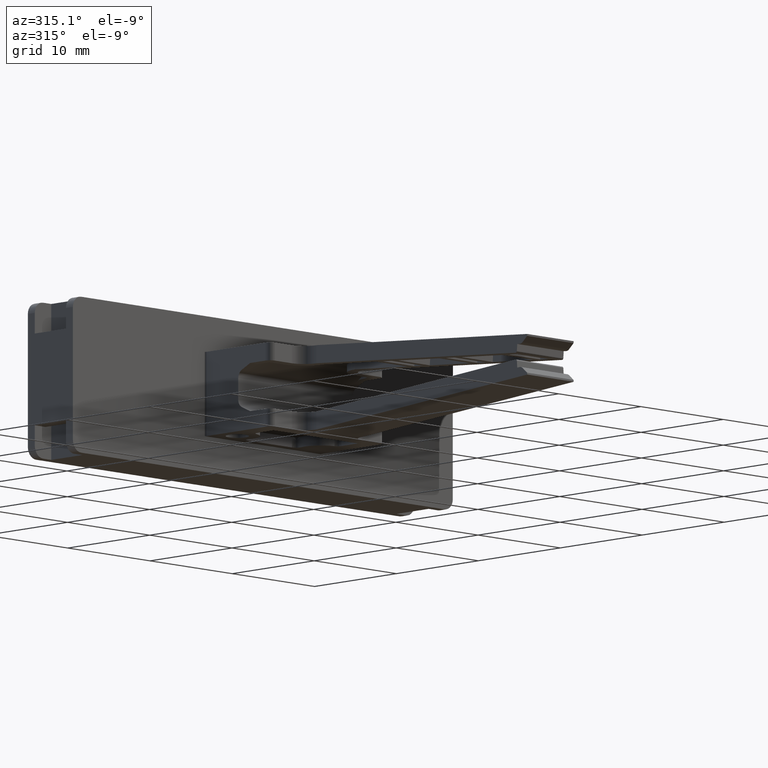
[diagram: clean part render]
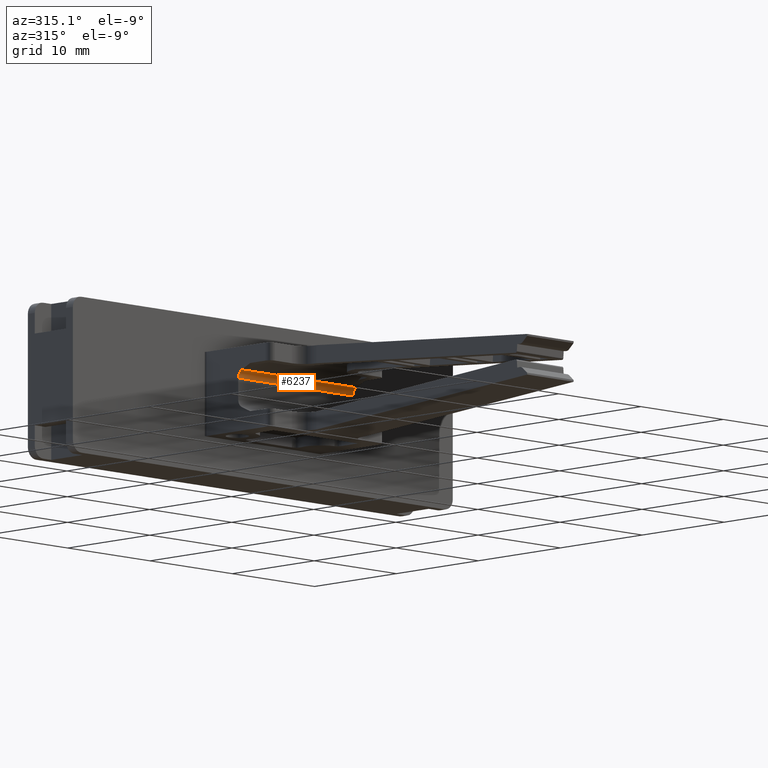
[diagram: same view with one face highlighted and labeled with its STEP entity id]
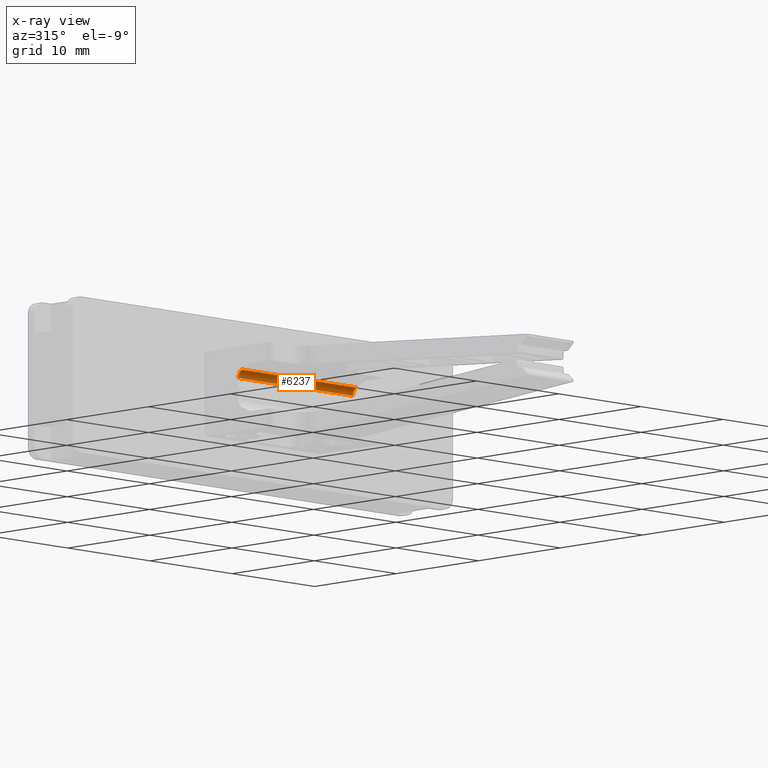
[diagram: x-ray of the same camera — body ghosted, the highlighted face saturated]
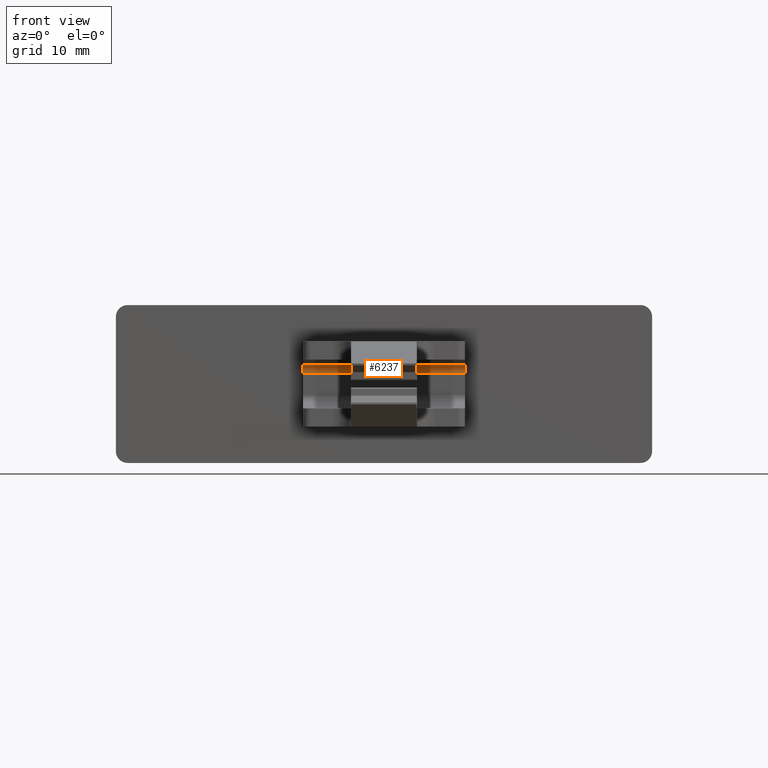
[diagram: same view with one face highlighted and labeled with its STEP entity id]
A machine part, auxiliary view. The second image highlights one B-rep face of the part: STEP entity #6237.
The next image is the same camera in x-ray: the body ghosted, the highlighted face saturated — about 0% of this face is hidden behind the body in this view.
A second angle (front view) of the same face is appended — the face is thin or edge-on in the first view.
In plain terms, the highlighted cylindrical surface (edge-blend (fillet) strip) has radius 0.75 mm, axis along (-1, 0, 0).
Its self-contained STEP definition (entity closure, byte-faithful):
#26 = CARTESIAN_POINT ( 'NONE',  ( -432.9670890845463300, 142.2340673050252100, 16.02338111327479500 ) ) ;
#29 = CARTESIAN_POINT ( 'NONE',  ( -446.9170890845463800, 142.2340673050252600, 16.02338111327479500 ) ) ;
#782 = FACE_OUTER_BOUND ( 'NONE', #5007, .T. ) ;
#839 = DIRECTION ( 'NONE',  ( -1.000000000000000000, 1.569331923815560200E-014, 0.0000000000000000000 ) ) ;
#846 = DIRECTION ( 'NONE',  ( 0.0000000000000000000, -1.000000000000000000, 0.0000000000000000000 ) ) ;
#859 = CYLINDRICAL_SURFACE ( 'NONE', #7418, 0.7500000000000006700 ) ;
#865 = CARTESIAN_POINT ( 'NONE',  ( -428.7687003443962800, 141.4840683558498700, 16.02338111327479500 ) ) ;
#1156 = CARTESIAN_POINT ( 'NONE',  ( -432.9670890845463300, 141.8010320521555300, 16.70311195355225200 ) ) ;
#2349 = CARTESIAN_POINT ( 'NONE',  ( -446.9170890845463800, 141.8010320521556800, 16.70311195355227700 ) ) ;
#2391 = ORIENTED_EDGE ( 'NONE', *, *, #6648, .T. ) ;
#2393 = ORIENTED_EDGE ( 'NONE', *, *, #6738, .F. ) ;
#2473 = ORIENTED_EDGE ( 'NONE', *, *, #6613, .F. ) ;
#2508 = ORIENTED_EDGE ( 'NONE', *, *, #6654, .F. ) ;
#3095 = LINE ( 'NONE', #3118, #6966 ) ;
#3118 = CARTESIAN_POINT ( 'NONE',  ( -428.7687003443962800, 141.8010320521554200, 16.70311195355227700 ) ) ;
#3120 = DIRECTION ( 'NONE',  ( 1.000000000000000000, -1.569331923815560200E-014, -0.0000000000000000000 ) ) ;
#3233 = CARTESIAN_POINT ( 'NONE',  ( -432.8397416578527000, 142.2340659539648600, 16.02338111327479500 ) ) ;
#3238 = DIRECTION ( 'NONE',  ( 1.000000000000000000, 1.075039900614120100E-014, -0.0000000000000000000 ) ) ;
#3259 = LINE ( 'NONE', #3233, #6974 ) ;
#3302 = CARTESIAN_POINT ( 'NONE',  ( -446.9170890845463800, 142.2340673050252600, 16.02338111327479500 ) ) ;
#3340 = CARTESIAN_POINT ( 'NONE',  ( -446.9170890845464900, 142.2331721195725400, 16.09849122150664500 ) ) ;
#3358 = CARTESIAN_POINT ( 'NONE',  ( -446.9170890845464300, 142.1837845860352700, 16.30395240323095500 ) ) ;
#3364 = CARTESIAN_POINT ( 'NONE',  ( -446.9170890845463800, 141.8010320521556800, 16.70311195355227700 ) ) ;
#3372 = CARTESIAN_POINT ( 'NONE',  ( -446.9170890845464300, 142.1556474684342100, 16.36593505560298600 ) ) ;
#3376 = CARTESIAN_POINT ( 'NONE',  ( -446.9170890845464900, 142.0385403951470100, 16.54719734739877500 ) ) ;
#3385 = CARTESIAN_POINT ( 'NONE',  ( -446.9170890845464300, 141.9333471534194500, 16.63944939207123100 ) ) ;
#3396 = CARTESIAN_POINT ( 'NONE',  ( -446.9170890845463800, 142.2229364786368800, 16.16962750114424800 ) ) ;
#3650 = CARTESIAN_POINT ( 'NONE',  ( -432.9670890845463900, 141.9288720476072900, 16.63121703207675100 ) ) ;
#3651 = CARTESIAN_POINT ( 'NONE',  ( -432.9670890845462200, 142.0340652893348500, 16.53896498740428100 ) ) ;
#3652 = CARTESIAN_POINT ( 'NONE',  ( -432.9670890845463300, 142.2340673050252100, 16.02338111327479500 ) ) ;
#3660 = CARTESIAN_POINT ( 'NONE',  ( -432.9670890845461000, 142.1931369469431800, 16.30452903109678800 ) ) ;
#3667 = CARTESIAN_POINT ( 'NONE',  ( -432.9670890845462700, 142.2322888395447100, 16.17020412901009200 ) ) ;
#3697 = CARTESIAN_POINT ( 'NONE',  ( -432.9670890845463300, 141.8010320521555300, 16.70311195355225200 ) ) ;
#3698 = CARTESIAN_POINT ( 'NONE',  ( -432.9670890845463900, 141.8687265088353800, 16.67055734668067000 ) ) ;
#3701 = CARTESIAN_POINT ( 'NONE',  ( -432.9670890845463900, 142.0783491925358200, 16.48726921375389400 ) ) ;
#4121 = B_SPLINE_CURVE_WITH_KNOTS ( 'NONE', 3,
 ( #3302, #3340, #3396, #3358, #3372, #3376, #3385, #3364 ),
 .UNSPECIFIED., .F., .F.,
 ( 4, 2, 2, 4 ),
 ( 0.0000000000000000000, 0.2500000000000025500, 0.5000000000000051100, 1.000000000000000000 ),
 .UNSPECIFIED. ) ;
#4148 = B_SPLINE_CURVE_WITH_KNOTS ( 'NONE', 3,
 ( #3697, #3698, #3650, #3651, #3701, #3660, #3667, #3652 ),
 .UNSPECIFIED., .F., .F.,
 ( 4, 2, 2, 4 ),
 ( 0.0000000000000000000, 0.2500000000000102700, 0.5000000000000205400, 1.000000000000000000 ),
 .UNSPECIFIED. ) ;
#5007 = EDGE_LOOP ( 'NONE', ( #2391, #2393, #2473, #2508 ) ) ;
#5978 = VERTEX_POINT ( 'NONE', #2349 ) ;
#6016 = VERTEX_POINT ( 'NONE', #1156 ) ;
#6072 = VERTEX_POINT ( 'NONE', #29 ) ;
#6085 = VERTEX_POINT ( 'NONE', #26 ) ;
#6237 = ADVANCED_FACE ( 'NONE', ( #782 ), #859, .F. ) ;
#6613 = EDGE_CURVE ( 'NONE', #5978, #6016, #3095, .T. ) ;
#6648 = EDGE_CURVE ( 'NONE', #6072, #6085, #3259, .T. ) ;
#6654 = EDGE_CURVE ( 'NONE', #6072, #5978, #4121, .T. ) ;
#6738 = EDGE_CURVE ( 'NONE', #6016, #6085, #4148, .T. ) ;
#6966 = VECTOR ( 'NONE', #3120, 1000.000000000000000 ) ;
#6974 = VECTOR ( 'NONE', #3238, 1000.000000000000000 ) ;
#7418 = AXIS2_PLACEMENT_3D ( 'NONE', #865, #839, #846 ) ;